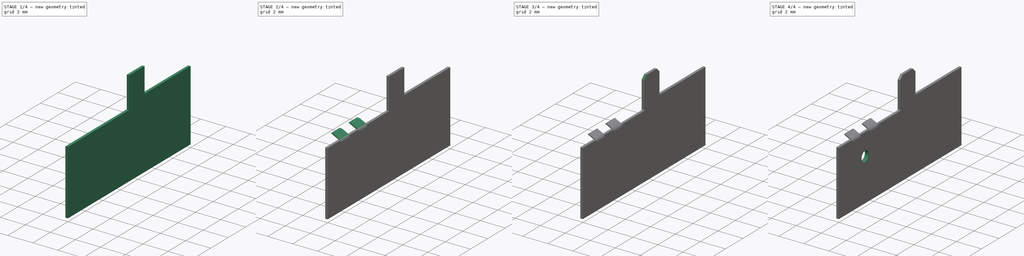
[diagram: build sequence overview — one tinted view per stage of 4, left to right]
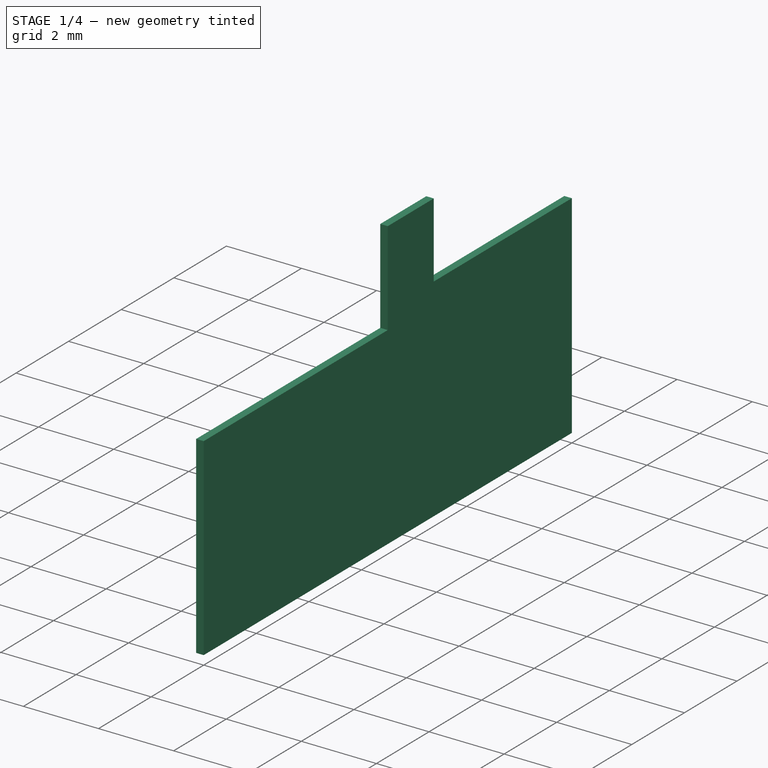
[diagram: stage 1 of 4 — iso view after this stage's code; geometry added in this stage tinted green]
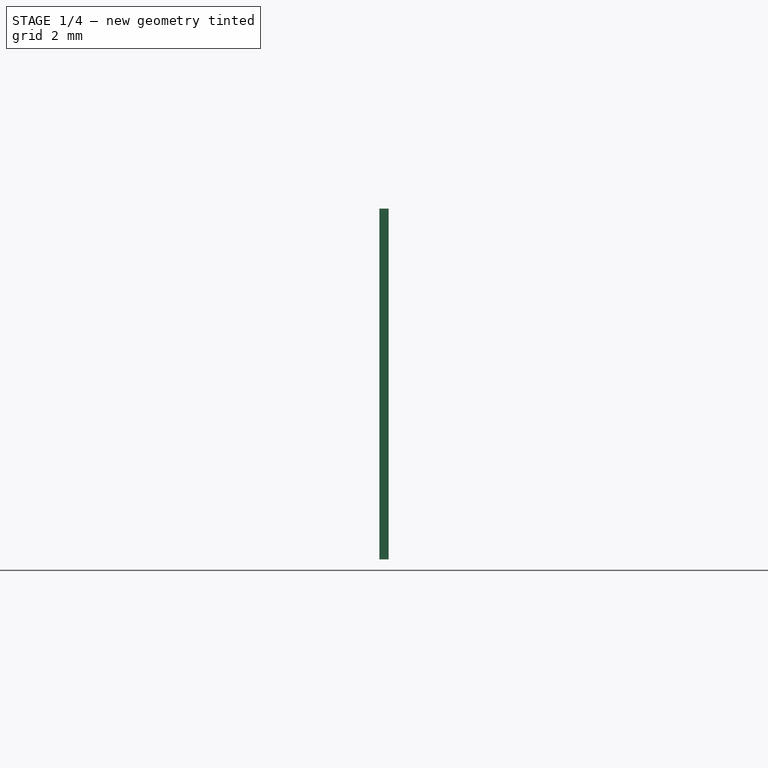
[diagram: stage 1 of 4 — front view after this stage's code; geometry added in this stage tinted green]
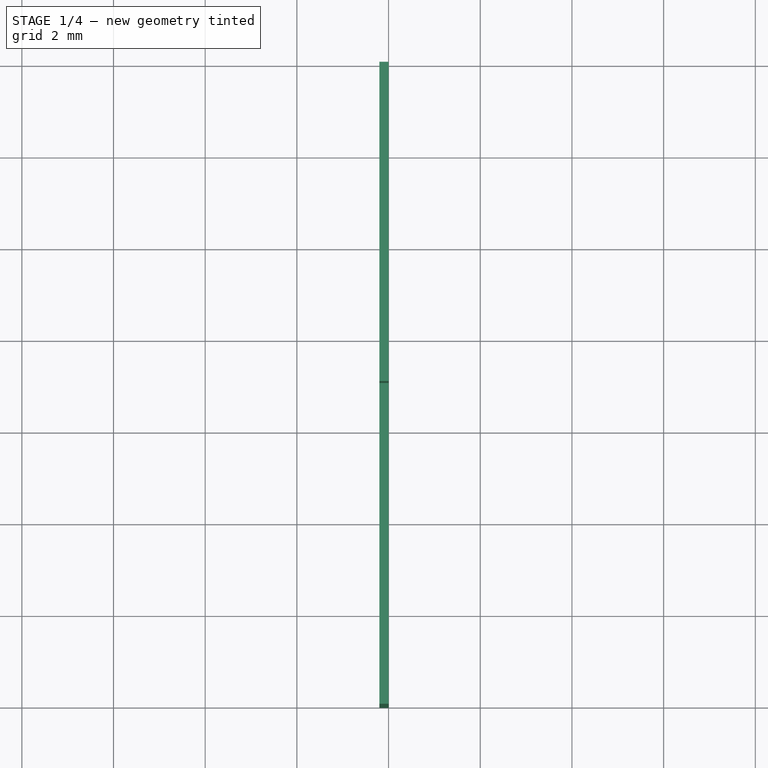
[diagram: stage 1 of 4 — top view after this stage's code; geometry added in this stage tinted green]
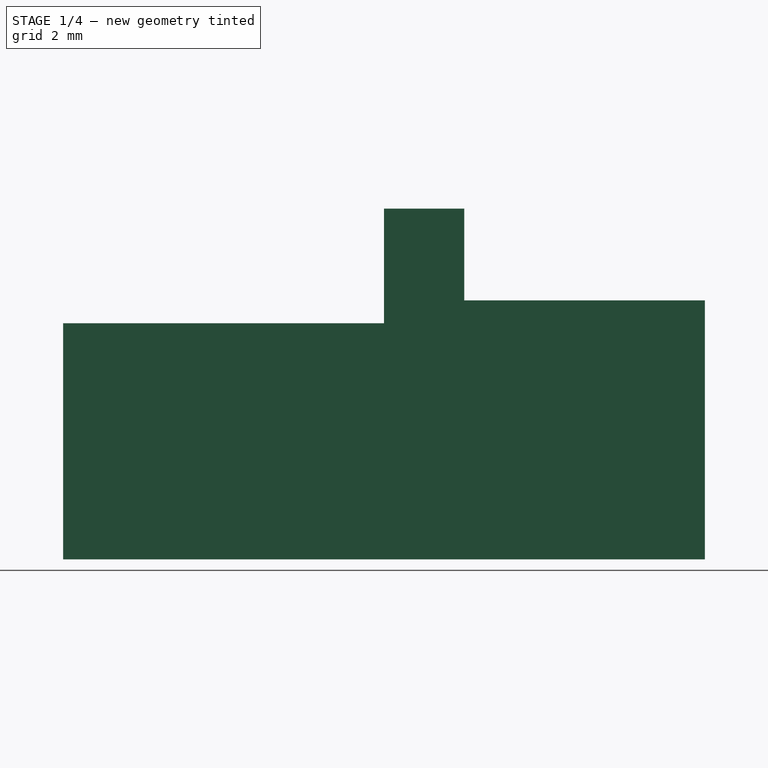
[diagram: stage 1 of 4 — right view after this stage's code; geometry added in this stage tinted green]
FCSTD DOCUMENT  (FreeCAD 0.19.4R1_voidlinux)
Label: battery_contact_plus
License: All rights reserved
LicenseURL: http://en.wikipedia.org/wiki/All_rights_reserved
objects: Sketcher::SketchObject×6, PartDesign::Fillet×4, PartDesign::Pad×3, PartDesign::Pocket×2, PartDesign::CoordinateSystem×2, PartDesign::LinearPattern×1, PartDesign::Draft×1, PartDesign::Chamfer×1, PartDesign::Plane×1, PartDesign::Revolution×1, PartDesign::Body×1, App::Part×1
note: 35 computed .brp shape members not serialized (recipe doc carries the construction recipe); baked Part::Feature solids carry a one-line shape summary decoded from their .brp
EXTERNAL_REF file=master_animator.FCStd obj=Variables

FEATURE [Sketcher::SketchObject] Sketch
  FullyConstrained = true
  MapMode = 5
  Support = -> [XY_Plane]
  sketch-geometry (4):
    g0: LineSegment StartX=0 StartY=0 StartZ=0 EndX=-0.2 EndY=0 EndZ=0
    g1: LineSegment StartX=-0.2 StartY=0 StartZ=0 EndX=-0.2 EndY=-14 EndZ=0
    g2: LineSegment StartX=-0.2 StartY=-14 StartZ=0 EndX=0 EndY=-14 EndZ=0
    g3: LineSegment StartX=0 StartY=-14 StartZ=0 EndX=0 EndY=0 EndZ=0
  constraints (11):
    c: Coincident(g0,g1)
    c: Coincident(g1,g2)
    c: Coincident(g2,g3)
    c: Coincident(g3,g0)
    c: Horizontal(g0)
    c: Horizontal(g2)
    c: Vertical(g1)
    c: Vertical(g3)
    c: Coincident(g0,g-1)
    c: Distance(g0) = 0.2
    c: Distance(g1) = 14
FEATURE [PartDesign::Pad] Pad
  Direction = (1,1,1)
  Length = 5.65
  Length2 = 100
  Profile = -> Sketch
  Type = 0
FEATURE [Sketcher::SketchObject] Sketch001
  ExternalGeometry = -> [Pad]
  FullyConstrained = true
  MapMode = 5
  Placement = pos=(-0.2,0,0) rot=(0.57735,-0.57735,-0.57735;2.0944rad)
  Support = -> [Pad]
  sketch-geometry (4):
    g0: LineSegment StartX=14 StartY=5.65 StartZ=0 EndX=7 EndY=5.65 EndZ=0
    g1: LineSegment StartX=7 StartY=5.65 StartZ=0 EndX=7 EndY=5.15 EndZ=0
    g2: LineSegment StartX=7 StartY=5.15 StartZ=0 EndX=14 EndY=5.15 EndZ=0
    g3: LineSegment StartX=14 StartY=5.15 StartZ=0 EndX=14 EndY=5.65 EndZ=0
  constraints (11):
    c: Coincident(g0,g1)
    c: Coincident(g1,g2)
    c: Coincident(g2,g3)
    c: Coincident(g3,g0)
    c: Horizontal(g0)
    c: Horizontal(g2)
    c: Vertical(g1)
    c: Vertical(g3)
    c: Coincident(g0,g-4)
    c: Distance(g1) = 0.5
    c: Distance(g2) = 7
FEATURE [PartDesign::Pocket] Pocket
  BaseFeature = -> Pad
  Length = 5
  Length2 = 100
  Profile = -> Sketch001
  Type = 1
FEATURE [Sketcher::SketchObject] Sketch002
  ExternalGeometry = -> [Pocket]
  FullyConstrained = true
  MapMode = 5
  Placement = pos=(0,0,5.65) rot=(0,0,1;0rad)
  Support = -> [Pocket]
  sketch-geometry (4):
    g0: LineSegment StartX=0 StartY=-7 StartZ=0 EndX=-0.2 EndY=-7 EndZ=0
    g1: LineSegment StartX=-0.2 StartY=-7 StartZ=0 EndX=-0.2 EndY=-5.25 EndZ=0
    g2: LineSegment StartX=-0.2 StartY=-5.25 StartZ=0 EndX=0 EndY=-5.25 EndZ=0
    g3: LineSegment StartX=0 StartY=-5.25 StartZ=0 EndX=0 EndY=-7 EndZ=0
  constraints (11):
    c: Coincident(g0,g1)
    c: Coincident(g1,g2)
    c: Coincident(g2,g3)
    c: Coincident(g3,g0)
    c: Horizontal(g0)
    c: Horizontal(g2)
    c: Vertical(g1)
    c: Vertical(g3)
    c: Coincident(g0,g-3)
    c: PointOnObject(g1,g-4)
    c: Distance(g1) = 1.75
FEATURE [PartDesign::Pad] Pad001
  BaseFeature = -> Pocket
  Direction = (1,1,1)
  Length = 2
  Length2 = 100
  Profile = -> Sketch002
  Type = 0
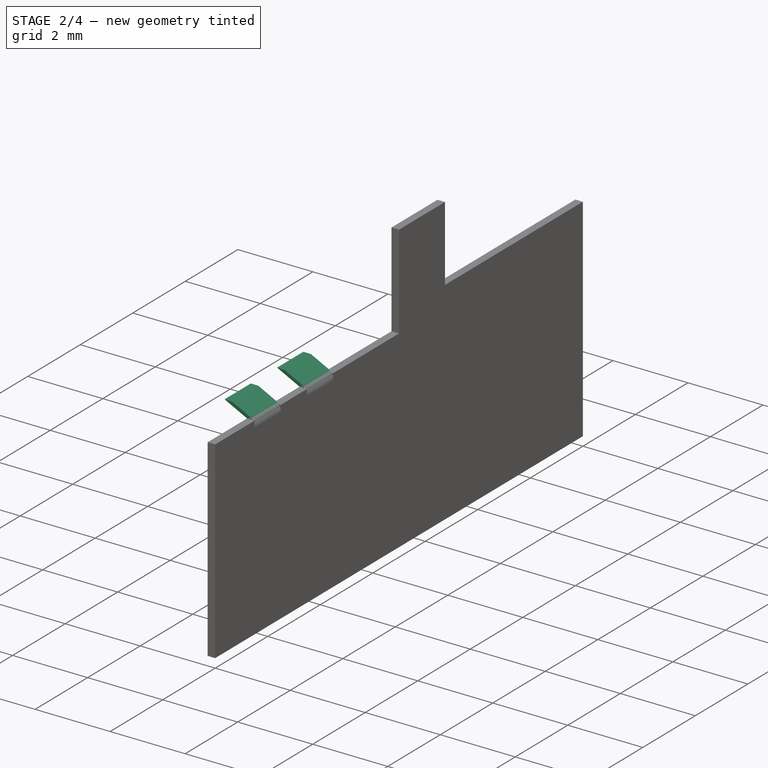
[diagram: stage 2 of 4 — iso view after this stage's code; geometry added in this stage tinted green]
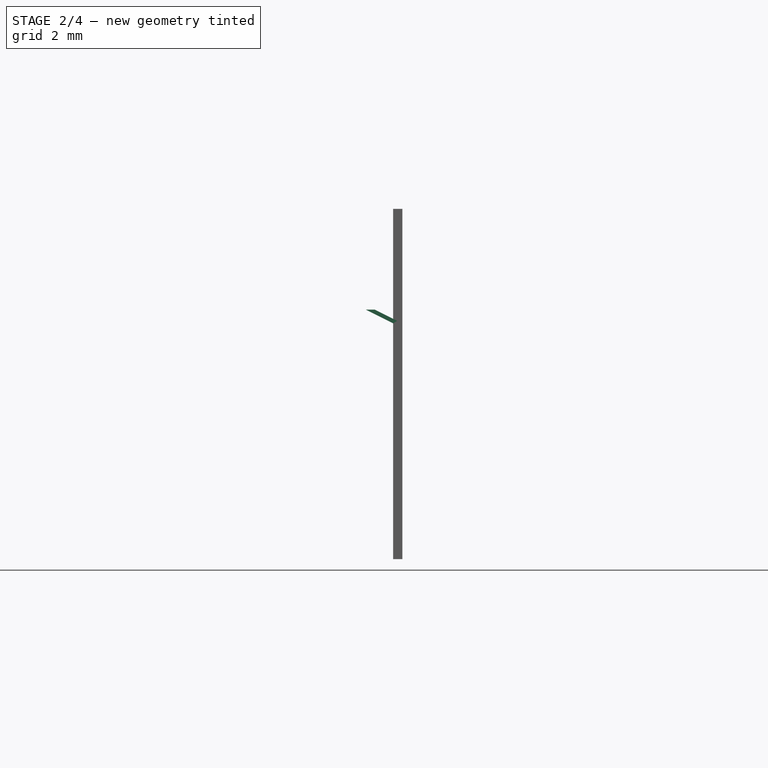
[diagram: stage 2 of 4 — front view after this stage's code; geometry added in this stage tinted green]
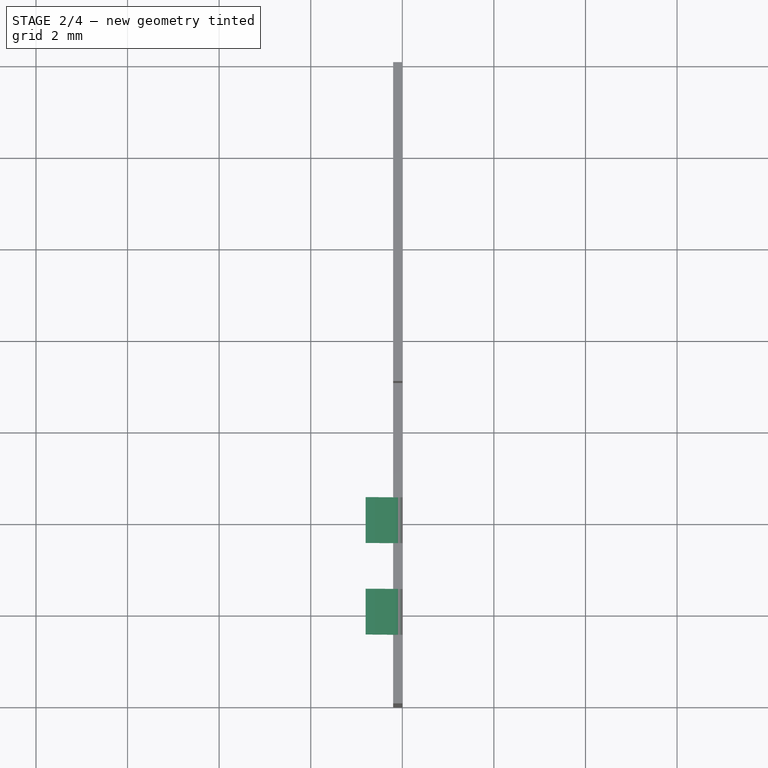
[diagram: stage 2 of 4 — top view after this stage's code; geometry added in this stage tinted green]
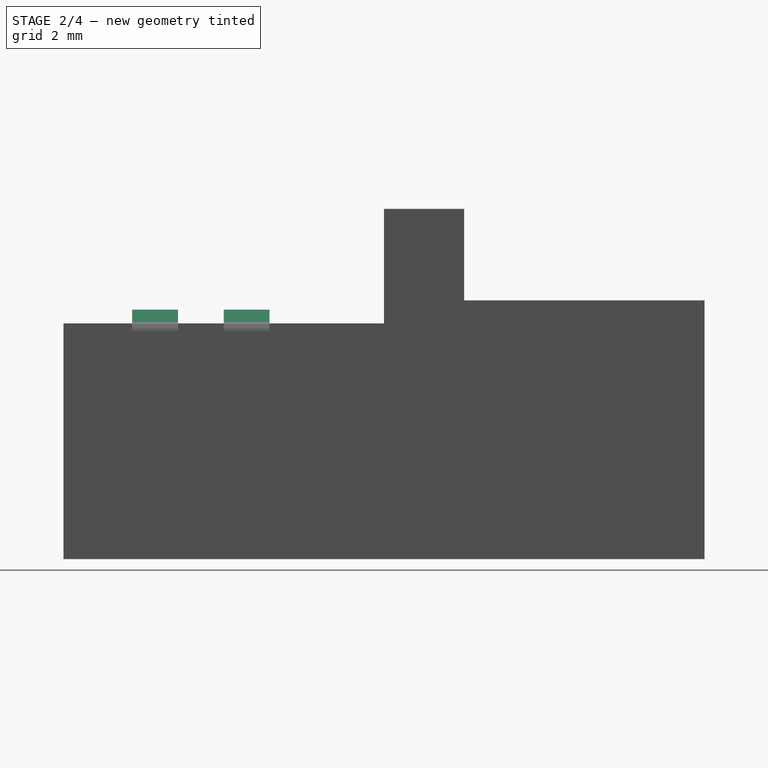
[diagram: stage 2 of 4 — right view after this stage's code; geometry added in this stage tinted green]
FEATURE [Sketcher::SketchObject] Sketch003
  ExternalGeometry = -> [Pad001]
  FullyConstrained = true
  MapMode = 5
  Placement = pos=(0,0,5.15) rot=(0,0,1;0rad)
  Support = -> [Pad001]
  sketch-geometry (4):
    g0: LineSegment StartX=-0.2 StartY=-11.5 StartZ=0 EndX=0 EndY=-11.5 EndZ=0
    g1: LineSegment StartX=0 StartY=-11.5 StartZ=0 EndX=0 EndY=-12.5 EndZ=0
    g2: LineSegment StartX=0 StartY=-12.5 StartZ=0 EndX=-0.2 EndY=-12.5 EndZ=0
    g3: LineSegment StartX=-0.2 StartY=-12.5 StartZ=0 EndX=-0.2 EndY=-11.5 EndZ=0
  constraints (12):
    c: Coincident(g0,g1)
    c: Coincident(g1,g2)
    c: Coincident(g2,g3)
    c: Coincident(g3,g0)
    c: Horizontal(g0)
    c: Horizontal(g2)
    c: Vertical(g1)
    c: Vertical(g3)
    c: PointOnObject(g0,g-3)
    c: PointOnObject(g1,g-4)
    c: DistanceY(g-3,g2) = 1.5
    c: Distance(g3) = 1
FEATURE [PartDesign::Pad] Pad002
  BaseFeature = -> Pad001
  Direction = (-2,0,1)
  Length = 0.3
  Length2 = 100
  Profile = -> Sketch003
  Type = 0
  UseCustomVector = true
FEATURE [PartDesign::LinearPattern] LinearPattern
  BaseFeature = -> Pad002
  Direction = -> Y_Axis
  Length = 2
  Occurrences = 2
  Originals = -> [Pad002]
FEATURE [PartDesign::Fillet] Fillet
  Base = -> LinearPattern [Edge10,Edge12]
  BaseFeature = -> LinearPattern
  Radius = 0.3
  SupportTransform = false
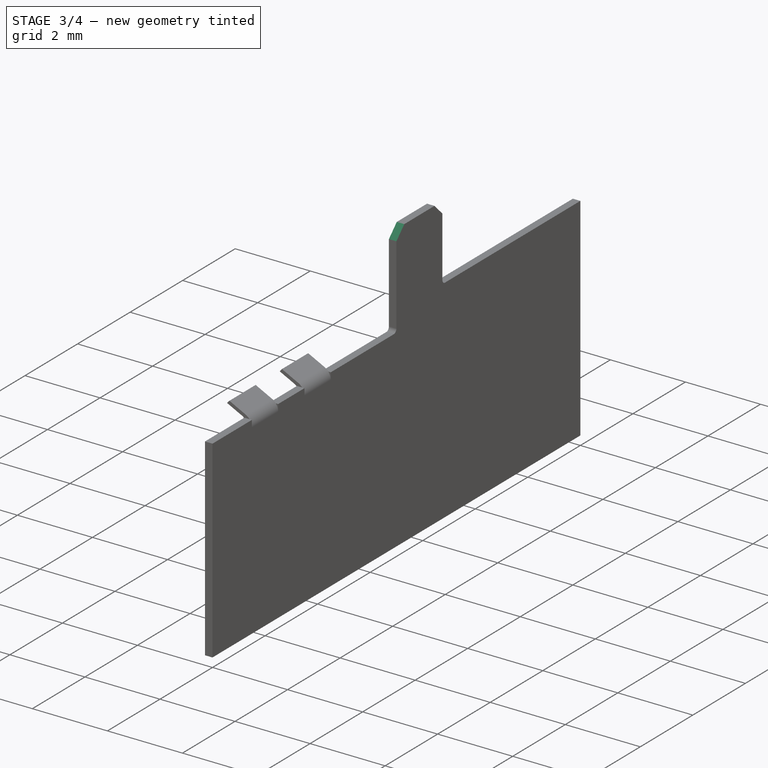
[diagram: stage 3 of 4 — iso view after this stage's code; geometry added in this stage tinted green]
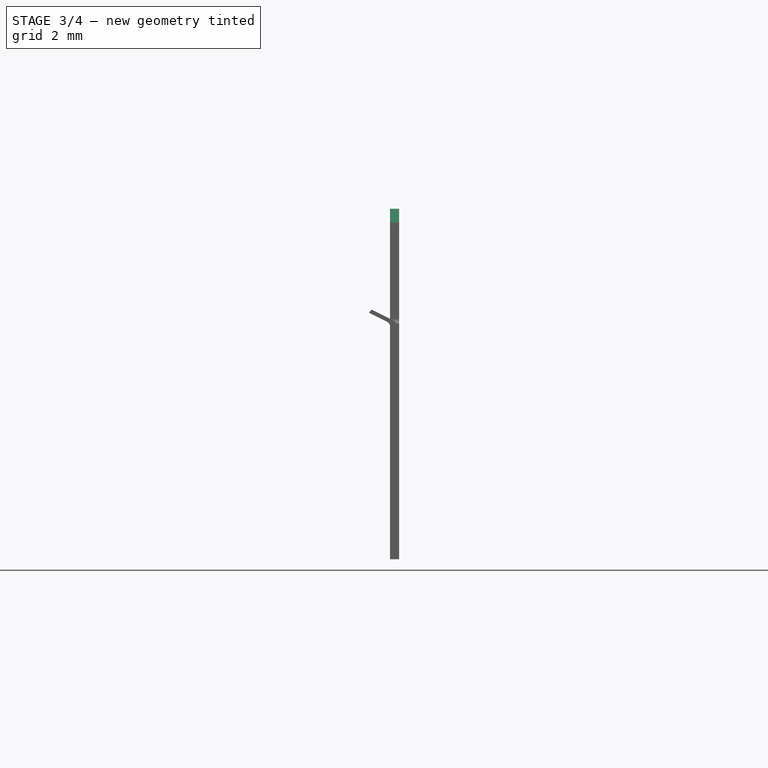
[diagram: stage 3 of 4 — front view after this stage's code; geometry added in this stage tinted green]
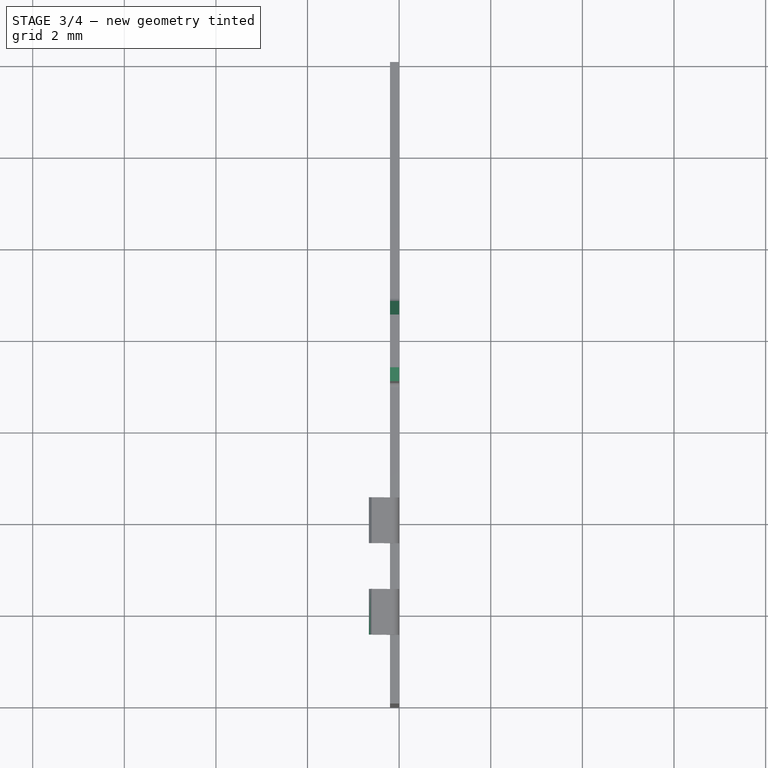
[diagram: stage 3 of 4 — top view after this stage's code; geometry added in this stage tinted green]
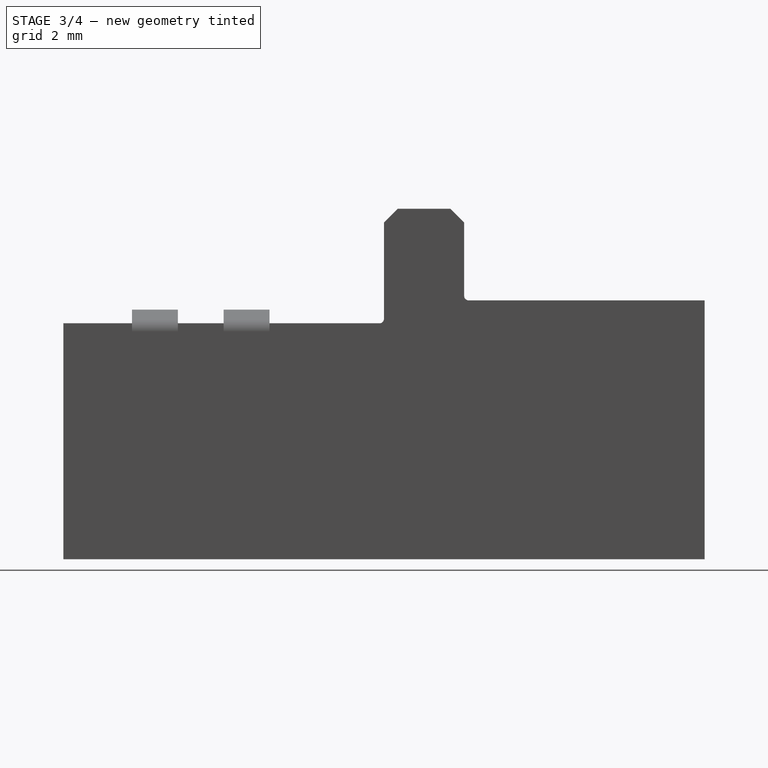
[diagram: stage 3 of 4 — right view after this stage's code; geometry added in this stage tinted green]
FEATURE [PartDesign::Fillet] Fillet001
  Base = -> Fillet [Edge68,Edge70]
  BaseFeature = -> Fillet
  Radius = 0.1
  SupportTransform = false
FEATURE [PartDesign::Draft] Draft
  Angle = 15
  Base = -> Fillet001 [Face4,Face26]
  BaseFeature = -> Fillet001
  NeutralPlane = -> Fillet001 [Face6]
  SupportTransform = false
FEATURE [PartDesign::Fillet] Fillet002
  Base = -> Draft [Edge30,Edge66]
  BaseFeature = -> Draft
  Radius = 0.1
  SupportTransform = false
FEATURE [PartDesign::Chamfer] Chamfer
  Angle = 45
  Base = -> Fillet002 [Edge85,Edge87]
  BaseFeature = -> Fillet002
  ChamferType = 0
  FlipDirection = false
  Size = 0.3
  Size2 = 1
  SupportTransform = false
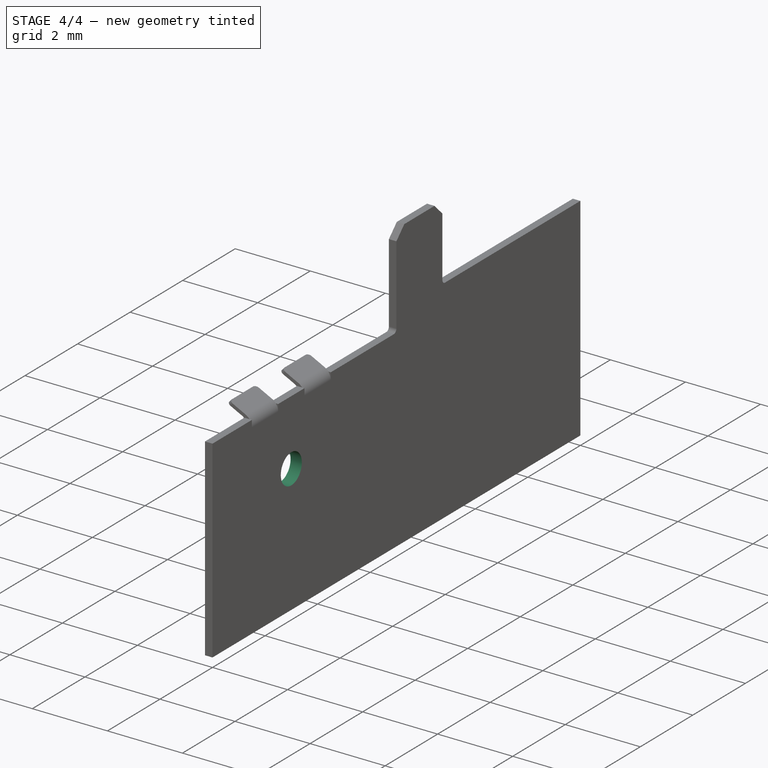
[diagram: stage 4 of 4 — iso view after this stage's code; geometry added in this stage tinted green]
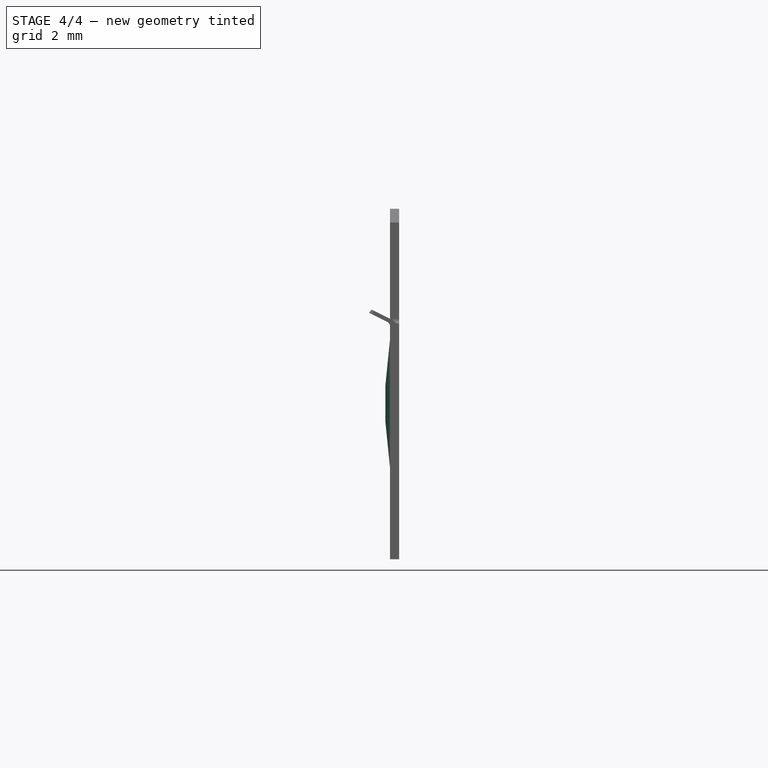
[diagram: stage 4 of 4 — front view after this stage's code; geometry added in this stage tinted green]
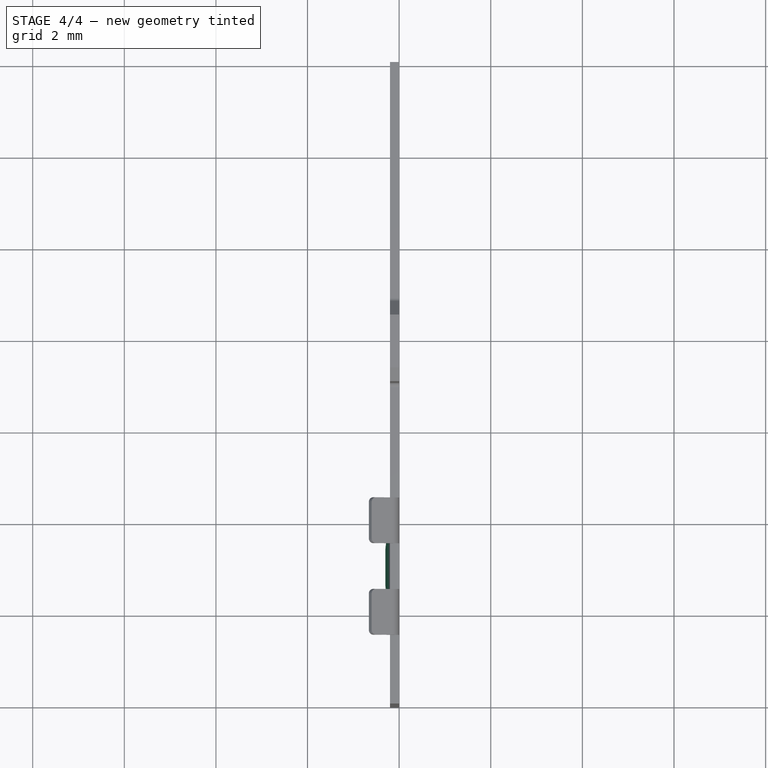
[diagram: stage 4 of 4 — top view after this stage's code; geometry added in this stage tinted green]
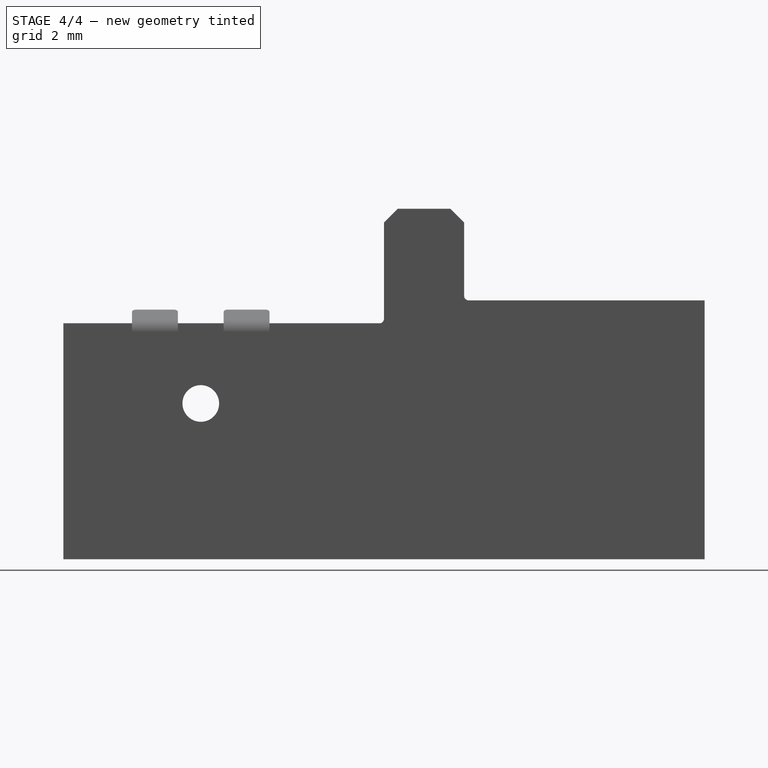
[diagram: stage 4 of 4 — right view after this stage's code; geometry added in this stage tinted green]
FEATURE [Sketcher::SketchObject] Sketch004
  ExternalGeometry = -> [Chamfer]
  FullyConstrained = true
  MapMode = 5
  Placement = pos=(-0.2,0,0) rot=(0.57735,-0.57735,-0.57735;2.0944rad)
  Support = -> [Chamfer]
  sketch-geometry (2):
    g0: Circle CenterX=11 CenterY=3.4 CenterZ=0 NormalX=0 NormalY=0 NormalZ=1 AngleXU=0 Radius=0.4
    g1: LineSegment StartX=11 StartY=5.15 StartZ=0 EndX=11 EndY=3.4 EndZ=0
  constraints (5):
    c: PointOnObject(g1,g-3)
    c: Coincident(g1,g0)
    c: Symmetric(g-3,g-3,g1)
    c: Distance(g1) = 1.75
    c: Radius(g0) = 0.4
FEATURE [PartDesign::Pocket] Pocket001
  BaseFeature = -> Chamfer
  Length = 5
  Length2 = 100
  Profile = -> Sketch004
  Type = 1
FEATURE [PartDesign::Fillet] Fillet003
  Base = -> Pocket001 [Edge67,Edge68,Edge79,Edge78,Edge57,Edge50]
  BaseFeature = -> Pocket001
  Radius = 0.1
  SupportTransform = false
FEATURE [PartDesign::Plane] DatumPlane
  AttachmentOffset = pos=(0,0,0) rot=(0,1,0;1.5708rad)
  Length = 60
  MapMode = 11
  Placement = pos=(-0.2,-11,3.4) rot=(0,0,1;0rad)
  ResizeMode = 0
  Support = -> [Fillet003]
  Width = 60
FEATURE [Sketcher::SketchObject] Sketch005
  ExternalGeometry = -> [Fillet003]
  FullyConstrained = true
  MapMode = 5
  Placement = pos=(-0.2,-11,3.4) rot=(0,0,1;0rad)
  Support = -> [DatumPlane]
  sketch-geometry (3):
    g0: LineSegment StartX=0 StartY=0.4 StartZ=0 EndX=-0.1 EndY=0.4 EndZ=0
    g1: LineSegment StartX=-0.1 StartY=0.4 StartZ=0 EndX=0 EndY=1.4 EndZ=0
    g2: LineSegment StartX=0 StartY=1.4 StartZ=0 EndX=0 EndY=0.4 EndZ=0
  constraints (8):
    c: Coincident(g0,g-3)
    c: Horizontal(g0)
    c: Coincident(g1,g0)
    c: PointOnObject(g1,g-2)
    c: Coincident(g2,g1)
    c: Coincident(g2,g0)
    c: Distance(g0) = 0.1
    c: Distance(g2) = 1
FEATURE [PartDesign::Revolution] Revolution
  Angle = 360
  Axis = (1,0,0)
  Base = (-0.2,-11,3.4)
  BaseFeature = -> Fillet003
  Profile = -> Sketch005
  ReferenceAxis = -> Sketch005 [H_Axis]
FEATURE [PartDesign::Body] Body
  Group = -> [Sketch,Pad,Sketch001,Pocket,Sketch002,Pad001,Sketch003,Pad002,LinearPattern,Fillet,Fillet001,Draft,Fillet002,Chamfer,Sketch004,Pocket001,Fillet003,DatumPlane,Sketch005,Revolution]
  Origin = -> Origin
  Tip = -> Revolution
FEATURE [PartDesign::CoordinateSystem] LCS_bottom_face
  AttacherType = Attacher::AttachEngine3D
  MapMode = 45
  Placement = pos=(-0.1,-7,0) rot=(0,0,1;0rad)
  Support = -> [Revolution]
  expr: .AttachmentOffset.Base.z = -master_animator#Variables.explode * 3
FEATURE [PartDesign::CoordinateSystem] LCS_plus_center
  AttacherType = Attacher::AttachEngine3D
  MapMode = 11
  Placement = pos=(-0.3,-11,3.4) rot=(0.707107,0,0.707107;3.14159rad)
  Support = -> [Revolution]
FEATURE [App::Part] Part  label="battery_contact_plus"
  Group = -> [Body,LCS_bottom_face,LCS_plus_center]
  Origin = -> Origin001
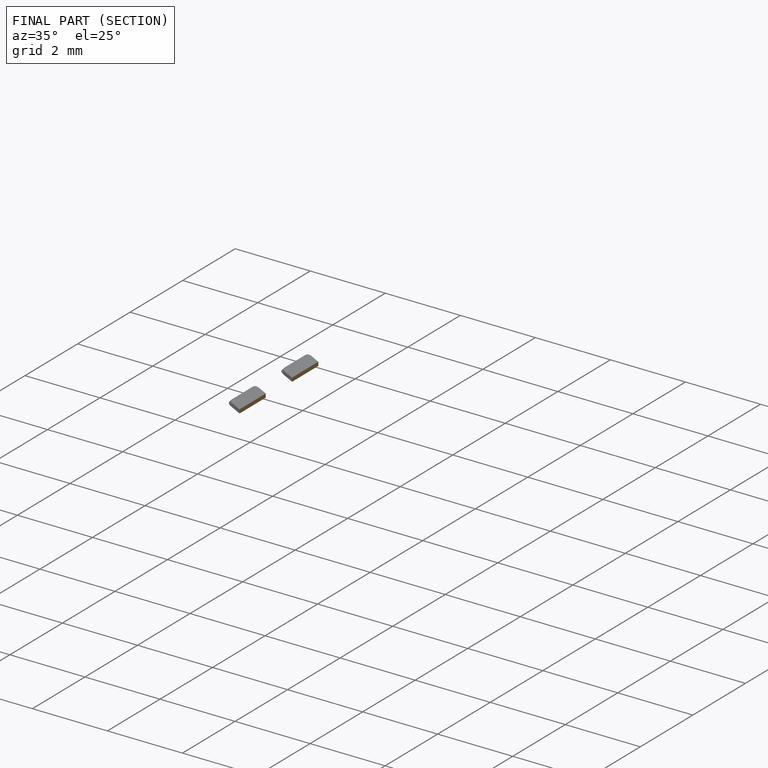
[diagram: finished part — half-section view (interior)]
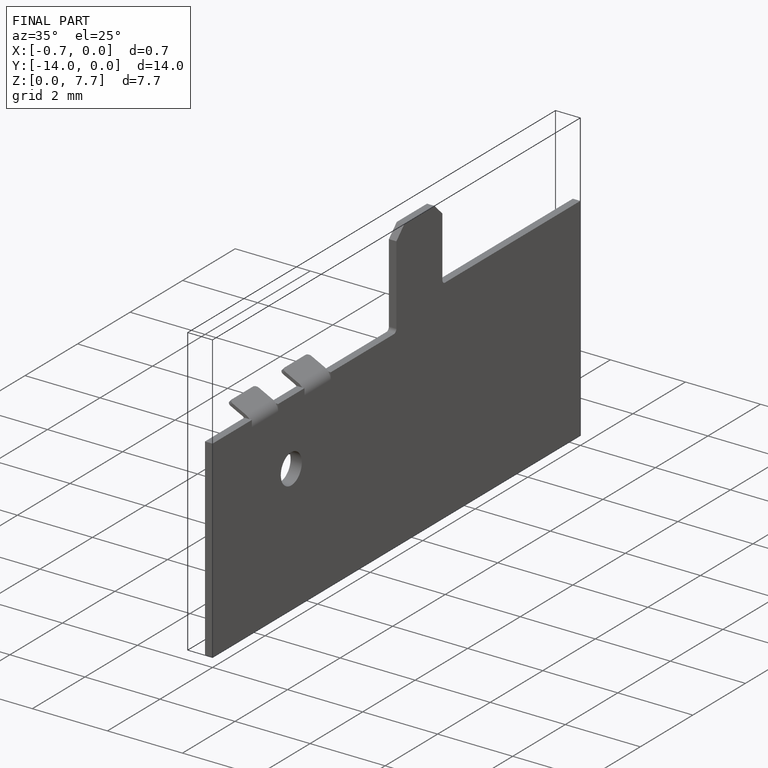
[diagram: finished part — iso view with bounding-box wireframe]
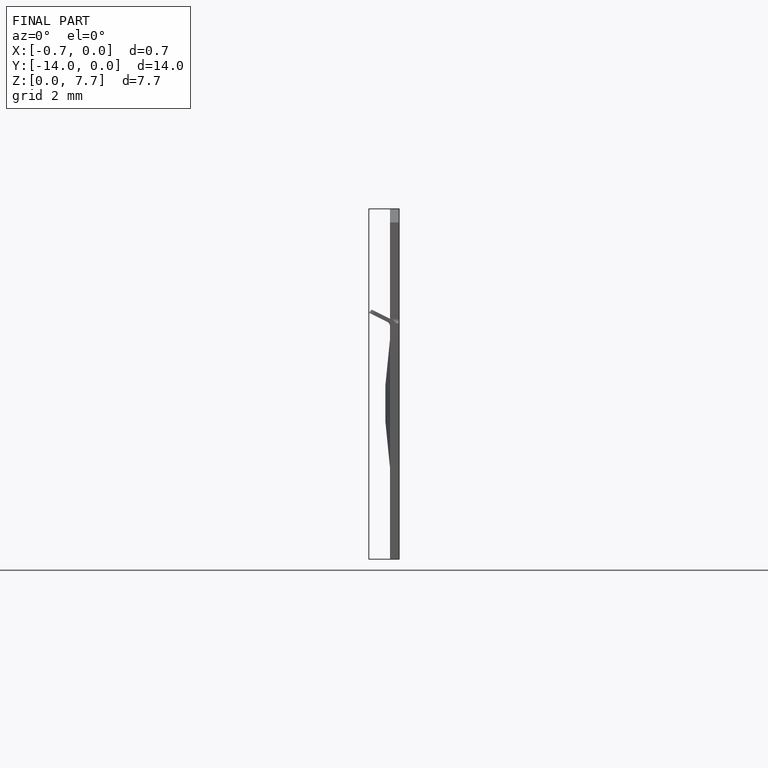
[diagram: finished part — front view with bounding-box wireframe]
